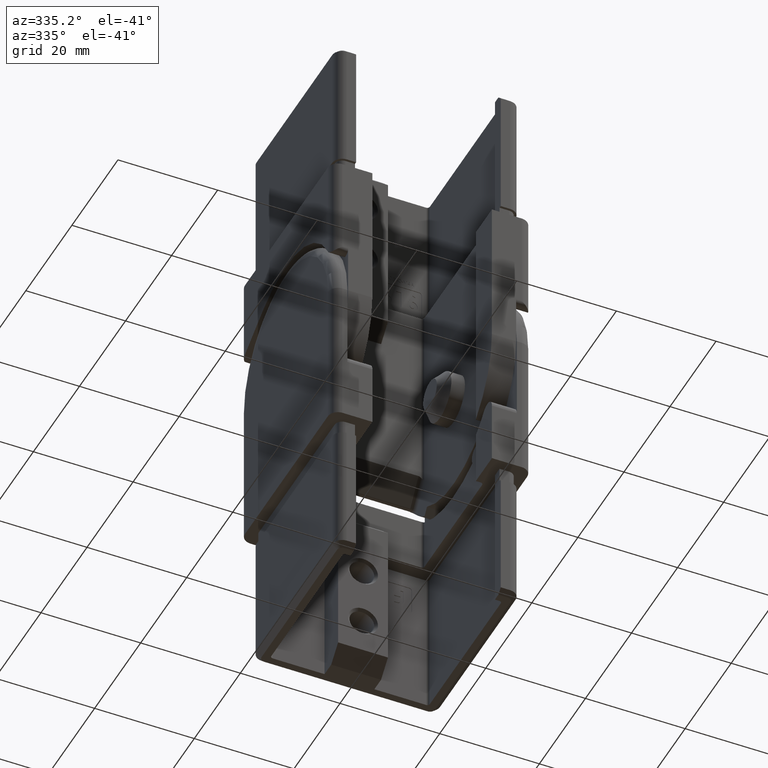
[diagram: clean part render]
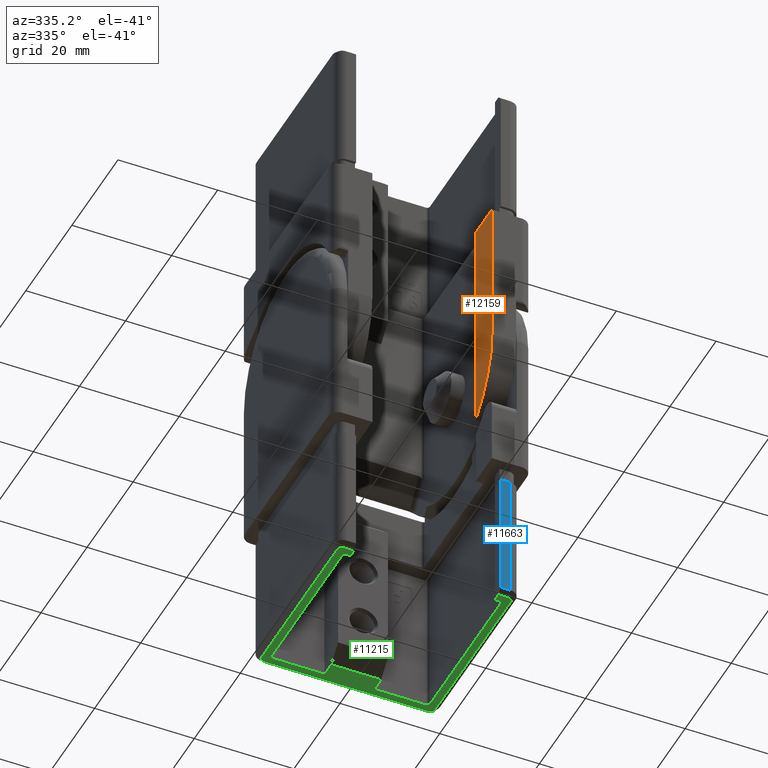
[diagram: same view with three faces highlighted in distinct colors, each labeled with its STEP entity id]
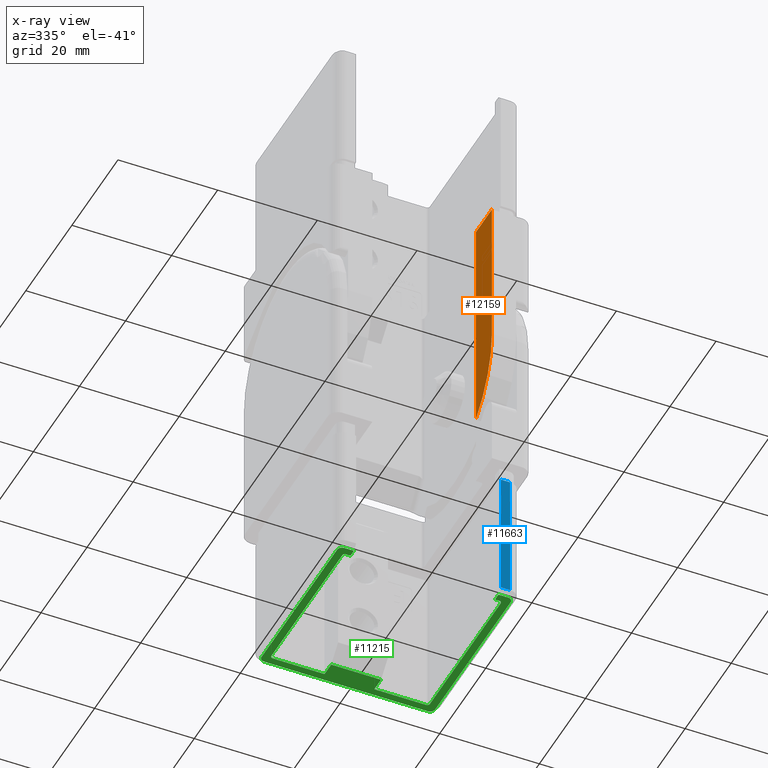
[diagram: x-ray of the same camera — body ghosted, the three highlighted faces saturated]
A machine part, auxiliary view with three faces highlighted in distinct colors.
The next image is the same camera in x-ray (body ghosted, the three faces saturated) — at least one of them is partly hidden behind the body in this view.
Their STEP definitions:

[orange] entity #12159 — the highlighted planar face has unit normal (-1, 0, 0).
#67 = DIRECTION ( 'NONE',  ( 0.0000000000000000000, 0.0000000000000000000, -1.000000000000000000 ) ) ;
#539 = CARTESIAN_POINT ( 'NONE',  ( 12.00000000000000000, -12.99999999999999800, 0.0000000000000000000 ) ) ;
#2417 = CARTESIAN_POINT ( 'NONE',  ( 12.00000000000000000, -12.99999999999999800, -45.19868415357066000 ) ) ;
#2540 = AXIS2_PLACEMENT_3D ( 'NONE', #17570, #6042, #14997 ) ;
#2785 = EDGE_LOOP ( 'NONE', ( #14551, #20785, #14346, #7670 ) ) ;
#2905 = EDGE_CURVE ( 'NONE', #13074, #5680, #20040, .T. ) ;
#5414 = LINE ( 'NONE', #21663, #10323 ) ;
#5680 = VERTEX_POINT ( 'NONE', #24929 ) ;
#6042 = DIRECTION ( 'NONE',  ( -1.000000000000000000, 0.0000000000000000000, 0.0000000000000000000 ) ) ;
#6634 = VECTOR ( 'NONE', #17230, 1000.000000000000000 ) ;
#6943 = EDGE_CURVE ( 'NONE', #15709, #5680, #5414, .T. ) ;
#7420 = CARTESIAN_POINT ( 'NONE',  ( 12.00000000000000000, -20.00000000000000000, -5.999999999999998200 ) ) ;
#7670 = ORIENTED_EDGE ( 'NONE', *, *, #2905, .T. ) ;
#7711 = FACE_OUTER_BOUND ( 'NONE', #2785, .T. ) ;
#7960 = DIRECTION ( 'NONE',  ( 1.000000000000000000, -0.0000000000000000000, 0.0000000000000000000 ) ) ;
#10038 = LINE ( 'NONE', #16591, #6634 ) ;
#10323 = VECTOR ( 'NONE', #17723, 1000.000000000000000 ) ;
#11619 = VERTEX_POINT ( 'NONE', #2417 ) ;
#12159 = ADVANCED_FACE ( 'NONE', ( #7711 ), #14262, .T. ) ;
#13074 = VERTEX_POINT ( 'NONE', #15439 ) ;
#13556 = CARTESIAN_POINT ( 'NONE',  ( 12.00000000000000000, 0.0000000000000000000, -30.00000000000000000 ) ) ;
#13878 = AXIS2_PLACEMENT_3D ( 'NONE', #13556, #7960, #67 ) ;
#14126 = VECTOR ( 'NONE', #21048, 1000.000000000000000 ) ;
#14262 = PLANE ( 'NONE',  #2540 ) ;
#14346 = ORIENTED_EDGE ( 'NONE', *, *, #24514, .F. ) ;
#14551 = ORIENTED_EDGE ( 'NONE', *, *, #6943, .F. ) ;
#14630 = CIRCLE ( 'NONE', #13878, 19.99999999999999600 ) ;
#14997 = DIRECTION ( 'NONE',  ( 0.0000000000000000000, 0.0000000000000000000, 1.000000000000000000 ) ) ;
#15058 = EDGE_CURVE ( 'NONE', #11619, #15709, #10038, .T. ) ;
#15439 = CARTESIAN_POINT ( 'NONE',  ( 12.00000000000000000, -20.00000000000000400, -30.00000000000000000 ) ) ;
#15709 = VERTEX_POINT ( 'NONE', #539 ) ;
#16591 = CARTESIAN_POINT ( 'NONE',  ( 12.00000000000000000, -12.99999999999999800, -5.999999999999998200 ) ) ;
#17230 = DIRECTION ( 'NONE',  ( 0.0000000000000000000, 0.0000000000000000000, 1.000000000000000000 ) ) ;
#17570 = CARTESIAN_POINT ( 'NONE',  ( 12.00000000000000000, -20.00000000000000000, -5.999999999999998200 ) ) ;
#17723 = DIRECTION ( 'NONE',  ( -0.0000000000000000000, -1.000000000000000000, -0.0000000000000000000 ) ) ;
#20040 = LINE ( 'NONE', #7420, #14126 ) ;
#20785 = ORIENTED_EDGE ( 'NONE', *, *, #15058, .F. ) ;
#21048 = DIRECTION ( 'NONE',  ( 0.0000000000000000000, 0.0000000000000000000, 1.000000000000000000 ) ) ;
#21663 = CARTESIAN_POINT ( 'NONE',  ( 12.00000000000000000, -20.00000000000000000, 0.0000000000000000000 ) ) ;
#24514 = EDGE_CURVE ( 'NONE', #13074, #11619, #14630, .T. ) ;
#24929 = CARTESIAN_POINT ( 'NONE',  ( 12.00000000000000000, -20.00000000000000000, 0.0000000000000000000 ) ) ;

[blue] entity #11663 — the highlighted planar face has unit normal (-0, -1, 0).
#1354 = LINE ( 'NONE', #11887, #18613 ) ;
#2349 = ORIENTED_EDGE ( 'NONE', *, *, #25427, .F. ) ;
#2504 = DIRECTION ( 'NONE',  ( 0.0000000000000000000, 5.551115123125772800E-017, -1.000000000000000000 ) ) ;
#2873 = LINE ( 'NONE', #7609, #4111 ) ;
#3506 = VERTEX_POINT ( 'NONE', #6043 ) ;
#4111 = VECTOR ( 'NONE', #15174, 1000.000000000000000 ) ;
#4331 = AXIS2_PLACEMENT_3D ( 'NONE', #6448, #14038, #2504 ) ;
#5386 = CARTESIAN_POINT ( 'NONE',  ( -14.50000000000000400, -18.40000000000003400, 29.00000000000004600 ) ) ;
#5826 = VECTOR ( 'NONE', #7163, 1000.000000000000000 ) ;
#5970 = VERTEX_POINT ( 'NONE', #14114 ) ;
#6043 = CARTESIAN_POINT ( 'NONE',  ( -14.50000000000000400, -18.40000000000002700, 2.999999999999981800 ) ) ;
#6182 = PLANE ( 'NONE',  #4331 ) ;
#6448 = CARTESIAN_POINT ( 'NONE',  ( 0.0000000000000000000, -18.40000000000002700, 30.00000000000003900 ) ) ;
#7163 = DIRECTION ( 'NONE',  ( -1.000000000000000000, 0.0000000000000000000, 0.0000000000000000000 ) ) ;
#7609 = CARTESIAN_POINT ( 'NONE',  ( -14.50000000000000400, -18.40000000000002700, 30.00000000000003900 ) ) ;
#8119 = EDGE_LOOP ( 'NONE', ( #24454, #19447, #2349, #18005 ) ) ;
#9141 = VERTEX_POINT ( 'NONE', #12075 ) ;
#9844 = EDGE_CURVE ( 'NONE', #24468, #5970, #11094, .T. ) ;
#10042 = CARTESIAN_POINT ( 'NONE',  ( -16.40000000000000600, -18.40000000000002700, 30.00000000000003900 ) ) ;
#10892 = VECTOR ( 'NONE', #15818, 1000.000000000000000 ) ;
#11094 = LINE ( 'NONE', #17199, #5826 ) ;
#11663 = ADVANCED_FACE ( 'NONE', ( #14232 ), #6182, .T. ) ;
#11887 = CARTESIAN_POINT ( 'NONE',  ( -16.40000000000000600, -18.40000000000002700, 2.999999999999981800 ) ) ;
#12075 = CARTESIAN_POINT ( 'NONE',  ( -16.40000000000000600, -18.40000000000002700, 2.999999999999981800 ) ) ;
#14038 = DIRECTION ( 'NONE',  ( 0.0000000000000000000, -1.000000000000000000, -5.551115123125772800E-017 ) ) ;
#14114 = CARTESIAN_POINT ( 'NONE',  ( -16.40000000000000600, -18.40000000000003400, 29.00000000000004600 ) ) ;
#14232 = FACE_OUTER_BOUND ( 'NONE', #8119, .T. ) ;
#15174 = DIRECTION ( 'NONE',  ( 0.0000000000000000000, 5.551115123125772800E-017, -1.000000000000000000 ) ) ;
#15818 = DIRECTION ( 'NONE',  ( 0.0000000000000000000, 5.551115123125772800E-017, -1.000000000000000000 ) ) ;
#17199 = CARTESIAN_POINT ( 'NONE',  ( 0.0000000000000000000, -18.40000000000003400, 29.00000000000004600 ) ) ;
#17409 = LINE ( 'NONE', #10042, #10892 ) ;
#18005 = ORIENTED_EDGE ( 'NONE', *, *, #9844, .T. ) ;
#18279 = EDGE_CURVE ( 'NONE', #5970, #9141, #17409, .T. ) ;
#18589 = EDGE_CURVE ( 'NONE', #9141, #3506, #1354, .T. ) ;
#18613 = VECTOR ( 'NONE', #21630, 1000.000000000000000 ) ;
#19447 = ORIENTED_EDGE ( 'NONE', *, *, #18589, .T. ) ;
#21630 = DIRECTION ( 'NONE',  ( 1.000000000000000000, -2.115516434118061200E-016, 0.0000000000000000000 ) ) ;
#24454 = ORIENTED_EDGE ( 'NONE', *, *, #18279, .T. ) ;
#24468 = VERTEX_POINT ( 'NONE', #5386 ) ;
#25427 = EDGE_CURVE ( 'NONE', #24468, #3506, #2873, .T. ) ;

[green] entity #11215 — the highlighted planar face has unit normal (0, -0, -1).
#64 = ORIENTED_EDGE ( 'NONE', *, *, #18001, .T. ) ;
#101 = EDGE_CURVE ( 'NONE', #21467, #18647, #10830, .T. ) ;
#191 = EDGE_CURVE ( 'NONE', #2963, #10525, #11168, .T. ) ;
#303 = EDGE_CURVE ( 'NONE', #9969, #2395, #2816, .T. ) ;
#305 = EDGE_CURVE ( 'NONE', #1030, #9969, #1610, .T. ) ;
#356 = EDGE_CURVE ( 'NONE', #21659, #9562, #25338, .T. ) ;
#383 = DIRECTION ( 'NONE',  ( 0.0000000000000000000, -5.551115123125772800E-017, 1.000000000000000000 ) ) ;
#494 = DIRECTION ( 'NONE',  ( 0.0000000000000000000, -5.551115123125772800E-017, 1.000000000000000000 ) ) ;
#905 = EDGE_CURVE ( 'NONE', #10525, #3511, #24713, .T. ) ;
#1030 = VERTEX_POINT ( 'NONE', #12953 ) ;
#1085 = AXIS2_PLACEMENT_3D ( 'NONE', #5938, #383, #14125 ) ;
#1351 = CARTESIAN_POINT ( 'NONE',  ( -15.90000000000000700, 15.40000000000001100, 30.00000000000004600 ) ) ;
#1505 = EDGE_CURVE ( 'NONE', #16260, #21659, #17000, .T. ) ;
#1554 = ORIENTED_EDGE ( 'NONE', *, *, #15797, .T. ) ;
#1610 = LINE ( 'NONE', #13373, #15450 ) ;
#1663 = ORIENTED_EDGE ( 'NONE', *, *, #101, .T. ) ;
#1810 = CARTESIAN_POINT ( 'NONE',  ( 5.000000000000000000, 15.90000000000004700, 30.00000000000006800 ) ) ;
#1861 = CARTESIAN_POINT ( 'NONE',  ( 16.40000000000000600, 16.40000000000003100, 30.00000000000003200 ) ) ;
#1908 = ORIENTED_EDGE ( 'NONE', *, *, #19539, .T. ) ;
#2395 = VERTEX_POINT ( 'NONE', #1351 ) ;
#2423 = CARTESIAN_POINT ( 'NONE',  ( -17.40000000000000600, 1.387778780781445700E-014, 30.00000000000006000 ) ) ;
#2708 = EDGE_CURVE ( 'NONE', #17153, #1030, #9516, .T. ) ;
#2726 = ORIENTED_EDGE ( 'NONE', *, *, #16760, .T. ) ;
#2816 = CIRCLE ( 'NONE', #17942, 0.5000000000000004400 ) ;
#2846 = ORIENTED_EDGE ( 'NONE', *, *, #305, .F. ) ;
#2913 = LINE ( 'NONE', #7529, #4151 ) ;
#2963 = VERTEX_POINT ( 'NONE', #9485 ) ;
#3266 = VERTEX_POINT ( 'NONE', #16794 ) ;
#3511 = VERTEX_POINT ( 'NONE', #22016 ) ;
#3759 = CIRCLE ( 'NONE', #23735, 1.000000000000000900 ) ;
#4151 = VECTOR ( 'NONE', #22978, 1000.000000000000000 ) ;
#4271 = ORIENTED_EDGE ( 'NONE', *, *, #191, .T. ) ;
#4649 = CARTESIAN_POINT ( 'NONE',  ( 5.000000000000000000, 13.00000000000001100, 30.00000000000003900 ) ) ;
#5075 = LINE ( 'NONE', #24893, #6605 ) ;
#5099 = ORIENTED_EDGE ( 'NONE', *, *, #356, .T. ) ;
#5214 = DIRECTION ( 'NONE',  ( -1.000000000000000000, 0.0000000000000000000, 0.0000000000000000000 ) ) ;
#5218 = DIRECTION ( 'NONE',  ( -0.0000000000000000000, -1.000000000000000000, -5.551115123125772800E-017 ) ) ;
#5587 = VECTOR ( 'NONE', #24858, 1000.000000000000000 ) ;
#5690 = LINE ( 'NONE', #7296, #15261 ) ;
#5938 = CARTESIAN_POINT ( 'NONE',  ( -15.40000000000000700, -15.40000000000002500, 30.00000000000006000 ) ) ;
#6129 = PLANE ( 'NONE',  #7476 ) ;
#6199 = VECTOR ( 'NONE', #22010, 1000.000000000000000 ) ;
#6391 = CIRCLE ( 'NONE', #9810, 0.5000000000000004400 ) ;
#6492 = LINE ( 'NONE', #21583, #21597 ) ;
#6605 = VECTOR ( 'NONE', #5218, 1000.000000000000000 ) ;
#6682 = VERTEX_POINT ( 'NONE', #16244 ) ;
#6699 = DIRECTION ( 'NONE',  ( 1.000000000000000000, 0.0000000000000000000, 0.0000000000000000000 ) ) ;
#6751 = DIRECTION ( 'NONE',  ( -0.0000000000000000000, -1.000000000000000000, -5.551115123125772800E-017 ) ) ;
#6804 = EDGE_CURVE ( 'NONE', #17153, #15373, #23339, .T. ) ;
#6823 = CIRCLE ( 'NONE', #18329, 0.9999999999999974500 ) ;
#6920 = DIRECTION ( 'NONE',  ( 1.000000000000000000, 0.0000000000000000000, 0.0000000000000000000 ) ) ;
#7296 = CARTESIAN_POINT ( 'NONE',  ( -3.177282998104876100E-014, -17.40000000000000600, 30.00000000000009600 ) ) ;
#7361 = AXIS2_PLACEMENT_3D ( 'NONE', #1861, #9841, #23658 ) ;
#7476 = AXIS2_PLACEMENT_3D ( 'NONE', #8299, #494, #20229 ) ;
#7499 = VECTOR ( 'NONE', #23823, 1000.000000000000000 ) ;
#7529 = CARTESIAN_POINT ( 'NONE',  ( 0.0000000000000000000, -15.90000000000003600, 30.00000000000004600 ) ) ;
#7599 = VECTOR ( 'NONE', #6920, 1000.000000000000000 ) ;
#7770 = ORIENTED_EDGE ( 'NONE', *, *, #1505, .T. ) ;
#8299 = CARTESIAN_POINT ( 'NONE',  ( 0.0000000000000000000, 1.387778780781445700E-014, 30.00000000000006000 ) ) ;
#8504 = CARTESIAN_POINT ( 'NONE',  ( 15.90000000000000700, 15.40000000000001100, 30.00000000000004600 ) ) ;
#8613 = DIRECTION ( 'NONE',  ( -0.0000000000000000000, 5.551115123125772800E-017, -1.000000000000000000 ) ) ;
#8831 = CARTESIAN_POINT ( 'NONE',  ( 0.0000000000000000000, 13.00000000000001100, 30.00000000000003900 ) ) ;
#9044 = EDGE_CURVE ( 'NONE', #23717, #23567, #19881, .T. ) ;
#9368 = LINE ( 'NONE', #21013, #21389 ) ;
#9485 = CARTESIAN_POINT ( 'NONE',  ( 15.90000000000000700, -15.40000000000002500, 30.00000000000006000 ) ) ;
#9514 = VERTEX_POINT ( 'NONE', #20330 ) ;
#9516 = LINE ( 'NONE', #21826, #19441 ) ;
#9545 = DIRECTION ( 'NONE',  ( 0.0000000000000000000, -5.551115123125772800E-017, 1.000000000000000000 ) ) ;
#9562 = VERTEX_POINT ( 'NONE', #13583 ) ;
#9810 = AXIS2_PLACEMENT_3D ( 'NONE', #14457, #8613, #6699 ) ;
#9841 = DIRECTION ( 'NONE',  ( 0.0000000000000000000, -5.551115123125772800E-017, 1.000000000000000000 ) ) ;
#9969 = VERTEX_POINT ( 'NONE', #23553 ) ;
#9982 = CARTESIAN_POINT ( 'NONE',  ( 15.40000000000000400, 15.90000000000004700, 30.00000000000006800 ) ) ;
#10012 = DIRECTION ( 'NONE',  ( 0.0000000000000000000, 1.000000000000000000, 5.551115123125772800E-017 ) ) ;
#10308 = FACE_OUTER_BOUND ( 'NONE', #23911, .T. ) ;
#10525 = VERTEX_POINT ( 'NONE', #23533 ) ;
#10810 = ORIENTED_EDGE ( 'NONE', *, *, #13191, .F. ) ;
#10830 = LINE ( 'NONE', #24598, #5587 ) ;
#10947 = CARTESIAN_POINT ( 'NONE',  ( 17.40000000000000600, 1.387778780781445700E-014, 30.00000000000006000 ) ) ;
#11168 = CIRCLE ( 'NONE', #20260, 0.5000000000000004400 ) ;
#11215 = ADVANCED_FACE ( 'NONE', ( #10308 ), #6129, .T. ) ;
#11242 = DIRECTION ( 'NONE',  ( 1.000000000000000000, 0.0000000000000000000, 0.0000000000000000000 ) ) ;
#11585 = DIRECTION ( 'NONE',  ( -1.000000000000000000, 0.0000000000000000000, 0.0000000000000000000 ) ) ;
#11698 = CARTESIAN_POINT ( 'NONE',  ( -16.40000000000000600, -16.40000000000002700, 30.00000000000005300 ) ) ;
#12252 = VECTOR ( 'NONE', #6751, 1000.000000000000000 ) ;
#12335 = DIRECTION ( 'NONE',  ( 0.0000000000000000000, -5.551115123125772800E-017, 1.000000000000000000 ) ) ;
#12466 = EDGE_CURVE ( 'NONE', #3511, #18332, #24981, .T. ) ;
#12693 = LINE ( 'NONE', #14063, #6199 ) ;
#12696 = LINE ( 'NONE', #19713, #22228 ) ;
#12865 = ORIENTED_EDGE ( 'NONE', *, *, #22114, .T. ) ;
#12953 = CARTESIAN_POINT ( 'NONE',  ( -5.000000000000000000, 15.90000000000004700, 30.00000000000006800 ) ) ;
#12995 = CARTESIAN_POINT ( 'NONE',  ( -17.40000000000000600, 16.40000000000003100, 30.00000000000003200 ) ) ;
#13191 = EDGE_CURVE ( 'NONE', #18257, #14013, #16017, .T. ) ;
#13373 = CARTESIAN_POINT ( 'NONE',  ( 0.0000000000000000000, 15.90000000000004700, 30.00000000000006800 ) ) ;
#13381 = DIRECTION ( 'NONE',  ( 0.0000000000000000000, 1.000000000000000000, 5.551115123125772800E-017 ) ) ;
#13563 = CARTESIAN_POINT ( 'NONE',  ( 16.40000000000000600, -16.40000000000002700, 30.00000000000005300 ) ) ;
#13583 = CARTESIAN_POINT ( 'NONE',  ( 16.40000000000000600, 17.40000000000001300, 30.00000000000002800 ) ) ;
#13596 = ORIENTED_EDGE ( 'NONE', *, *, #22769, .F. ) ;
#13822 = CARTESIAN_POINT ( 'NONE',  ( -15.90000000000000700, -15.40000000000003200, 30.00000000000003200 ) ) ;
#14013 = VERTEX_POINT ( 'NONE', #15539 ) ;
#14063 = CARTESIAN_POINT ( 'NONE',  ( -15.90000000000000700, 1.387778780781445700E-014, 30.00000000000006000 ) ) ;
#14125 = DIRECTION ( 'NONE',  ( 1.000000000000000000, 0.0000000000000000000, 0.0000000000000000000 ) ) ;
#14143 = CARTESIAN_POINT ( 'NONE',  ( -16.40000000000000600, 17.40000000000001300, 30.00000000000002800 ) ) ;
#14162 = CARTESIAN_POINT ( 'NONE',  ( 14.50000000000000000, -17.40000000000004500, 30.00000000000003900 ) ) ;
#14263 = CARTESIAN_POINT ( 'NONE',  ( 6.129356281784706200E-014, -15.90000000000008700, 30.00000000000004600 ) ) ;
#14433 = ORIENTED_EDGE ( 'NONE', *, *, #9044, .T. ) ;
#14457 = CARTESIAN_POINT ( 'NONE',  ( 15.40000000000000700, 15.40000000000003600, 30.00000000000007500 ) ) ;
#14495 = EDGE_CURVE ( 'NONE', #18647, #17799, #6391, .T. ) ;
#15122 = VECTOR ( 'NONE', #18095, 1000.000000000000000 ) ;
#15261 = VECTOR ( 'NONE', #19401, 1000.000000000000000 ) ;
#15345 = VERTEX_POINT ( 'NONE', #14143 ) ;
#15373 = VERTEX_POINT ( 'NONE', #4649 ) ;
#15450 = VECTOR ( 'NONE', #11585, 1000.000000000000000 ) ;
#15539 = CARTESIAN_POINT ( 'NONE',  ( -15.40000000000000400, -15.90000000000003600, 30.00000000000004600 ) ) ;
#15797 = EDGE_CURVE ( 'NONE', #17799, #2963, #5075, .T. ) ;
#16017 = CIRCLE ( 'NONE', #1085, 0.5000000000000004400 ) ;
#16099 = CARTESIAN_POINT ( 'NONE',  ( -17.40000000000000600, -16.40000000000002700, 30.00000000000005300 ) ) ;
#16244 = CARTESIAN_POINT ( 'NONE',  ( -16.40000000000000600, -17.40000000000004500, 30.00000000000003900 ) ) ;
#16260 = VERTEX_POINT ( 'NONE', #25217 ) ;
#16266 = ORIENTED_EDGE ( 'NONE', *, *, #2708, .F. ) ;
#16340 = CARTESIAN_POINT ( 'NONE',  ( -14.50000000000000400, 1.387778780781445700E-014, 30.00000000000006000 ) ) ;
#16585 = CARTESIAN_POINT ( 'NONE',  ( 17.40000000000000600, 16.40000000000003100, 30.00000000000003200 ) ) ;
#16760 = EDGE_CURVE ( 'NONE', #3266, #16260, #3759, .T. ) ;
#16794 = CARTESIAN_POINT ( 'NONE',  ( 16.40000000000000900, -17.40000000000004500, 30.00000000000003900 ) ) ;
#17000 = LINE ( 'NONE', #10947, #21311 ) ;
#17153 = VERTEX_POINT ( 'NONE', #23061 ) ;
#17191 = EDGE_CURVE ( 'NONE', #25033, #14013, #2913, .T. ) ;
#17356 = ORIENTED_EDGE ( 'NONE', *, *, #905, .T. ) ;
#17548 = CARTESIAN_POINT ( 'NONE',  ( -15.40000000000000700, 15.40000000000003600, 30.00000000000007500 ) ) ;
#17656 = DIRECTION ( 'NONE',  ( 0.0000000000000000000, -5.551115123125772800E-017, 1.000000000000000000 ) ) ;
#17767 = ORIENTED_EDGE ( 'NONE', *, *, #303, .F. ) ;
#17799 = VERTEX_POINT ( 'NONE', #8504 ) ;
#17876 = DIRECTION ( 'NONE',  ( 1.000000000000000000, 0.0000000000000000000, 0.0000000000000000000 ) ) ;
#17942 = AXIS2_PLACEMENT_3D ( 'NONE', #17548, #23060, #11242 ) ;
#18001 = EDGE_CURVE ( 'NONE', #9562, #15345, #9368, .T. ) ;
#18095 = DIRECTION ( 'NONE',  ( -1.000000000000000000, -3.854941057726222900E-015, 0.0000000000000000000 ) ) ;
#18257 = VERTEX_POINT ( 'NONE', #13822 ) ;
#18329 = AXIS2_PLACEMENT_3D ( 'NONE', #11698, #9545, #19761 ) ;
#18332 = VERTEX_POINT ( 'NONE', #14162 ) ;
#18647 = VERTEX_POINT ( 'NONE', #9982 ) ;
#18848 = DIRECTION ( 'NONE',  ( 1.000000000000000000, 0.0000000000000000000, 0.0000000000000000000 ) ) ;
#18932 = ORIENTED_EDGE ( 'NONE', *, *, #21961, .T. ) ;
#19401 = DIRECTION ( 'NONE',  ( 1.000000000000000000, -1.826024711554533600E-015, 0.0000000000000000000 ) ) ;
#19402 = LINE ( 'NONE', #16340, #12252 ) ;
#19441 = VECTOR ( 'NONE', #10012, 1000.000000000000000 ) ;
#19539 = EDGE_CURVE ( 'NONE', #18257, #2395, #12693, .T. ) ;
#19713 = CARTESIAN_POINT ( 'NONE',  ( 0.0000000000000000000, -17.40000000000004500, 30.00000000000003900 ) ) ;
#19761 = DIRECTION ( 'NONE',  ( 1.000000000000000000, 0.0000000000000000000, 0.0000000000000000000 ) ) ;
#19881 = LINE ( 'NONE', #2423, #7499 ) ;
#20037 = ORIENTED_EDGE ( 'NONE', *, *, #12466, .T. ) ;
#20229 = DIRECTION ( 'NONE',  ( 1.000000000000000000, 0.0000000000000000000, 0.0000000000000000000 ) ) ;
#20260 = AXIS2_PLACEMENT_3D ( 'NONE', #20811, #22800, #18848 ) ;
#20308 = ORIENTED_EDGE ( 'NONE', *, *, #24355, .T. ) ;
#20330 = CARTESIAN_POINT ( 'NONE',  ( -14.50000000000000400, -17.40000000000004500, 30.00000000000003900 ) ) ;
#20478 = EDGE_CURVE ( 'NONE', #23567, #6682, #6823, .T. ) ;
#20722 = ORIENTED_EDGE ( 'NONE', *, *, #6804, .T. ) ;
#20811 = CARTESIAN_POINT ( 'NONE',  ( 15.40000000000000700, -15.40000000000005900, 30.00000000000006800 ) ) ;
#21013 = CARTESIAN_POINT ( 'NONE',  ( 0.0000000000000000000, 17.40000000000001300, 30.00000000000002800 ) ) ;
#21173 = ORIENTED_EDGE ( 'NONE', *, *, #20478, .T. ) ;
#21311 = VECTOR ( 'NONE', #24747, 1000.000000000000000 ) ;
#21389 = VECTOR ( 'NONE', #5214, 1000.000000000000000 ) ;
#21467 = VERTEX_POINT ( 'NONE', #1810 ) ;
#21583 = CARTESIAN_POINT ( 'NONE',  ( 5.000000000000000000, 1.387778780781445700E-014, 30.00000000000006000 ) ) ;
#21597 = VECTOR ( 'NONE', #13381, 1000.000000000000000 ) ;
#21659 = VERTEX_POINT ( 'NONE', #16585 ) ;
#21826 = CARTESIAN_POINT ( 'NONE',  ( -5.000000000000000000, 1.387778780781445700E-014, 30.00000000000006000 ) ) ;
#21961 = EDGE_CURVE ( 'NONE', #15373, #21467, #6492, .T. ) ;
#22010 = DIRECTION ( 'NONE',  ( 0.0000000000000000000, 1.000000000000000000, 5.551115123125772800E-017 ) ) ;
#22016 = CARTESIAN_POINT ( 'NONE',  ( 14.50000000000000000, -15.90000000000003600, 30.00000000000004600 ) ) ;
#22034 = CARTESIAN_POINT ( 'NONE',  ( 14.50000000000000000, 1.387778780781445700E-014, 30.00000000000006000 ) ) ;
#22114 = EDGE_CURVE ( 'NONE', #15345, #23717, #24077, .T. ) ;
#22123 = DIRECTION ( 'NONE',  ( -0.0000000000000000000, -1.000000000000000000, -5.551115123125772800E-017 ) ) ;
#22228 = VECTOR ( 'NONE', #17876, 1000.000000000000000 ) ;
#22254 = DIRECTION ( 'NONE',  ( 1.000000000000000000, 0.0000000000000000000, 0.0000000000000000000 ) ) ;
#22281 = EDGE_CURVE ( 'NONE', #6682, #9514, #12696, .T. ) ;
#22438 = ORIENTED_EDGE ( 'NONE', *, *, #14495, .T. ) ;
#22465 = AXIS2_PLACEMENT_3D ( 'NONE', #24163, #12335, #22254 ) ;
#22769 = EDGE_CURVE ( 'NONE', #25033, #9514, #19402, .T. ) ;
#22800 = DIRECTION ( 'NONE',  ( -0.0000000000000000000, 5.551115123125772800E-017, -1.000000000000000000 ) ) ;
#22841 = VECTOR ( 'NONE', #22123, 1000.000000000000000 ) ;
#22913 = ORIENTED_EDGE ( 'NONE', *, *, #22281, .T. ) ;
#22978 = DIRECTION ( 'NONE',  ( -1.000000000000000000, 0.0000000000000000000, 0.0000000000000000000 ) ) ;
#23060 = DIRECTION ( 'NONE',  ( 0.0000000000000000000, -5.551115123125772800E-017, 1.000000000000000000 ) ) ;
#23061 = CARTESIAN_POINT ( 'NONE',  ( -5.000000000000000000, 13.00000000000001100, 30.00000000000003900 ) ) ;
#23250 = DIRECTION ( 'NONE',  ( 1.000000000000000000, 0.0000000000000000000, 0.0000000000000000000 ) ) ;
#23339 = LINE ( 'NONE', #8831, #7599 ) ;
#23533 = CARTESIAN_POINT ( 'NONE',  ( 15.40000000000000600, -15.90000000000003600, 30.00000000000004600 ) ) ;
#23553 = CARTESIAN_POINT ( 'NONE',  ( -15.40000000000000400, 15.90000000000004700, 30.00000000000006800 ) ) ;
#23567 = VERTEX_POINT ( 'NONE', #16099 ) ;
#23658 = DIRECTION ( 'NONE',  ( 1.000000000000000000, 0.0000000000000000000, 0.0000000000000000000 ) ) ;
#23717 = VERTEX_POINT ( 'NONE', #12995 ) ;
#23733 = CARTESIAN_POINT ( 'NONE',  ( -14.50000000000000400, -15.90000000000003600, 30.00000000000004600 ) ) ;
#23735 = AXIS2_PLACEMENT_3D ( 'NONE', #13563, #17656, #23250 ) ;
#23823 = DIRECTION ( 'NONE',  ( -0.0000000000000000000, -1.000000000000000000, -5.551115123125772800E-017 ) ) ;
#23911 = EDGE_LOOP ( 'NONE', ( #16266, #20722, #18932, #1663, #22438, #1554, #4271, #17356, #20037, #20308, #2726, #7770, #5099, #64, #12865, #14433, #21173, #22913, #13596, #24832, #10810, #1908, #17767, #2846 ) ) ;
#24077 = CIRCLE ( 'NONE', #22465, 1.000000000000000900 ) ;
#24163 = CARTESIAN_POINT ( 'NONE',  ( -16.40000000000000600, 16.40000000000003100, 30.00000000000003200 ) ) ;
#24355 = EDGE_CURVE ( 'NONE', #18332, #3266, #5690, .T. ) ;
#24598 = CARTESIAN_POINT ( 'NONE',  ( 0.0000000000000000000, 15.90000000000004700, 30.00000000000006800 ) ) ;
#24713 = LINE ( 'NONE', #14263, #15122 ) ;
#24747 = DIRECTION ( 'NONE',  ( 0.0000000000000000000, 1.000000000000000000, 5.551115123125772800E-017 ) ) ;
#24832 = ORIENTED_EDGE ( 'NONE', *, *, #17191, .T. ) ;
#24858 = DIRECTION ( 'NONE',  ( 1.000000000000000000, 0.0000000000000000000, 0.0000000000000000000 ) ) ;
#24893 = CARTESIAN_POINT ( 'NONE',  ( 15.90000000000000700, 1.387778780781445700E-014, 30.00000000000006000 ) ) ;
#24981 = LINE ( 'NONE', #22034, #22841 ) ;
#25033 = VERTEX_POINT ( 'NONE', #23733 ) ;
#25217 = CARTESIAN_POINT ( 'NONE',  ( 17.40000000000000600, -16.40000000000002700, 30.00000000000005300 ) ) ;
#25338 = CIRCLE ( 'NONE', #7361, 0.9999999999999974500 ) ;